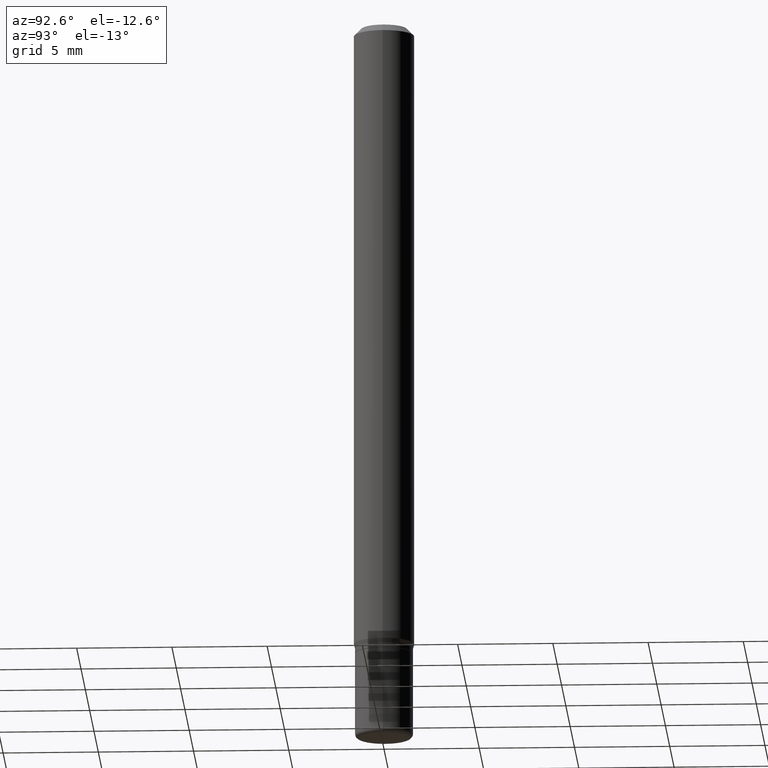
[diagram: clean part render]
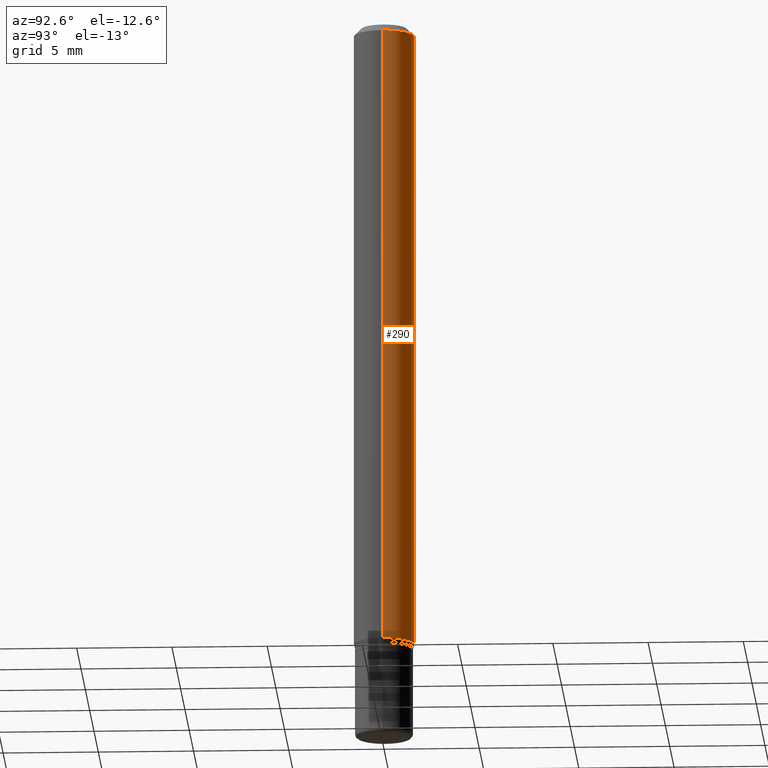
[diagram: same view with one face highlighted and labeled with its STEP entity id]
A machine part, auxiliary view. The second image highlights one B-rep face of the part: STEP entity #290.
In plain terms, the highlighted cylindrical surface (edge-blend (fillet) strip) has radius 1.5875 mm, axis along (-0, 0, 1).
Its self-contained STEP definition (entity closure, byte-faithful):
#6 = DIRECTION ( 'NONE',  ( -2.445468806185136877E-29, 3.491481338843145188E-15, 1.000000000000000000 ) ) ;
#16 = DIRECTION ( 'NONE',  ( 1.000000000000000000, -6.982962677686262766E-15, 0.000000000000000000 ) ) ;
#22 = CARTESIAN_POINT ( 'NONE',  ( 3.180747601520009606E-29, -4.541264589508918231E-15, -1.300669872981077946 ) ) ;
#26 = CARTESIAN_POINT ( 'NONE',  ( -0.06250000000000000000, -4.097175379658855615E-15, -1.300669872981077946 ) ) ;
#53 = DIRECTION ( 'NONE',  ( -2.445468806185136597E-29, 3.491481338843145583E-15, 1.000000000000000000 ) ) ;
#68 = CARTESIAN_POINT ( 'NONE',  ( 0.06250000000000000000, -4.888073874380378612E-16, -0.01499999999999970281 ) ) ;
#76 = EDGE_CURVE ( 'NONE', #332, #445, #279, .T. ) ;
#79 = ORIENTED_EDGE ( 'NONE', *, *, #222, .F. ) ;
#81 = EDGE_LOOP ( 'NONE', ( #156, #407, #369, #79 ) ) ;
#96 = CARTESIAN_POINT ( 'NONE',  ( 0.000000000000000000, 0.000000000000000000, 0.000000000000000000 ) ) ;
#137 = LINE ( 'NONE', #481, #417 ) ;
#155 = CARTESIAN_POINT ( 'NONE',  ( -0.06250000000000000000, -1.852729194945719447E-15, -0.01499999999999970281 ) ) ;
#156 = ORIENTED_EDGE ( 'NONE', *, *, #76, .T. ) ;
#162 = FACE_OUTER_BOUND ( 'NONE', #81, .T. ) ;
#185 = AXIS2_PLACEMENT_3D ( 'NONE', #22, #216, #16 ) ;
#205 = DIRECTION ( 'NONE',  ( -2.445468806185136877E-29, 3.491481338843145188E-15, 1.000000000000000000 ) ) ;
#207 = EDGE_CURVE ( 'NONE', #445, #513, #137, .T. ) ;
#213 = CARTESIAN_POINT ( 'NONE',  ( 0.06250000000000000000, -4.364351673553916694E-16, 3.047610484872459871E-30 ) ) ;
#216 = DIRECTION ( 'NONE',  ( -2.445468806185136597E-29, 3.491481338843145583E-15, 1.000000000000000000 ) ) ;
#222 = EDGE_CURVE ( 'NONE', #332, #436, #253, .T. ) ;
#223 = AXIS2_PLACEMENT_3D ( 'NONE', #96, #53, #250 ) ;
#229 = CARTESIAN_POINT ( 'NONE',  ( 0.06250000000000000000, -4.977699756864309111E-15, -1.300669872981077946 ) ) ;
#243 = CARTESIAN_POINT ( 'NONE',  ( 3.668203209277632395E-31, -5.237222008264614861E-17, -0.01499999999999970281 ) ) ;
#250 = DIRECTION ( 'NONE',  ( 1.000000000000000000, -6.982962677686266711E-15, 4.876176775795935793E-29 ) ) ;
#253 = LINE ( 'NONE', #213, #377 ) ;
#258 = EDGE_CURVE ( 'NONE', #436, #513, #270, .T. ) ;
#270 = CIRCLE ( 'NONE', #272, 0.06250000000000000000 ) ;
#272 = AXIS2_PLACEMENT_3D ( 'NONE', #243, #406, #441 ) ;
#279 = CIRCLE ( 'NONE', #185, 0.06250000000000000000 ) ;
#288 = CYLINDRICAL_SURFACE ( 'NONE', #223, 0.06250000000000000000 ) ;
#290 = ADVANCED_FACE ( 'NONE', ( #162 ), #288, .T. ) ;
#332 = VERTEX_POINT ( 'NONE', #229 ) ;
#369 = ORIENTED_EDGE ( 'NONE', *, *, #258, .F. ) ;
#377 = VECTOR ( 'NONE', #6, 39.37007874015748143 ) ;
#406 = DIRECTION ( 'NONE',  ( -2.445468806185136597E-29, 3.491481338843145583E-15, 1.000000000000000000 ) ) ;
#407 = ORIENTED_EDGE ( 'NONE', *, *, #207, .T. ) ;
#417 = VECTOR ( 'NONE', #205, 39.37007874015748143 ) ;
#436 = VERTEX_POINT ( 'NONE', #68 ) ;
#441 = DIRECTION ( 'NONE',  ( 1.000000000000000000, -6.982962677686266711E-15, 0.000000000000000000 ) ) ;
#445 = VERTEX_POINT ( 'NONE', #26 ) ;
#481 = CARTESIAN_POINT ( 'NONE',  ( -0.06250000000000000000, 4.440892098500626162E-16, -3.074334431409316114E-30 ) ) ;
#513 = VERTEX_POINT ( 'NONE', #155 ) ;